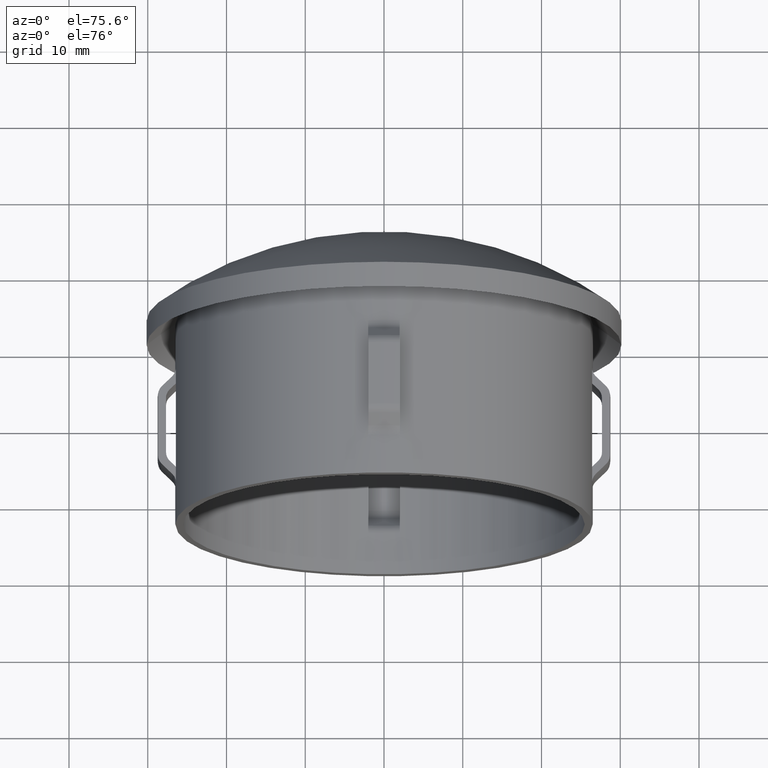
[diagram: clean part render]
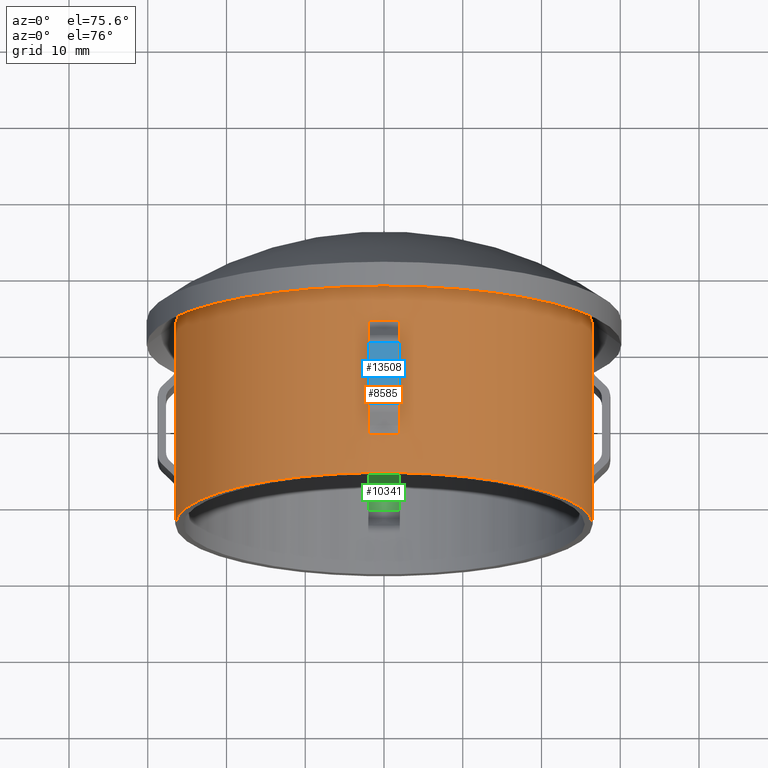
[diagram: same view with three faces highlighted in distinct colors, each labeled with its STEP entity id]
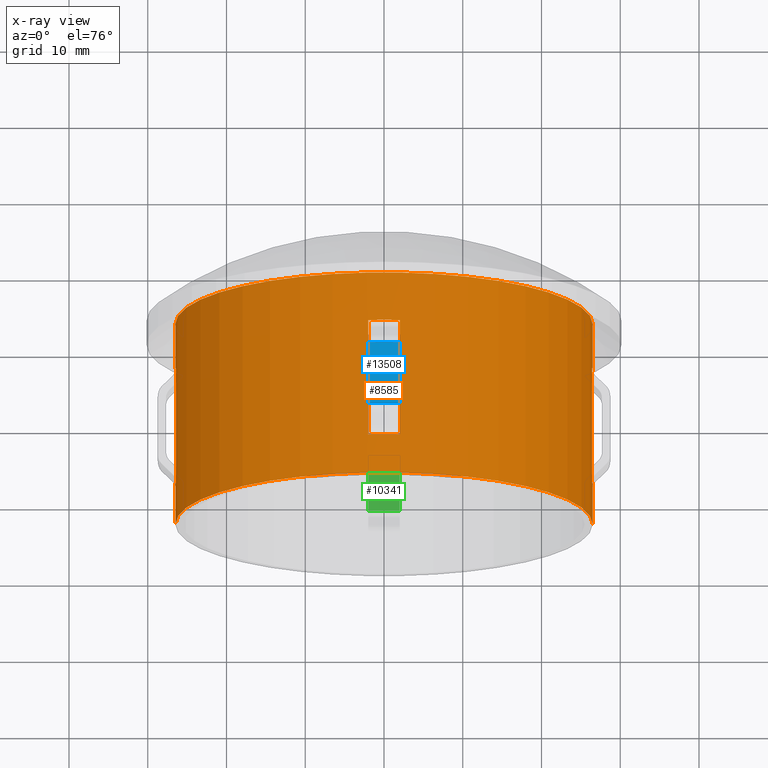
[diagram: x-ray of the same camera — body ghosted, the three highlighted faces saturated]
A machine part, auxiliary view with three faces highlighted in distinct colors.
The next image is the same camera in x-ray (body ghosted, the three faces saturated) — at least one of them is partly hidden behind the body in this view.
Their STEP definitions:

[orange] entity #8585 — the highlighted cylindrical surface (partial cylindrical patch) has radius 26.5 mm, axis along (-0, -1, -0).
#115 = DIRECTION ( 'NONE',  ( -2.699121545320764300E-015, -1.000000000000000000, -0.0000000000000000000 ) ) ;
#148 = VECTOR ( 'NONE', #4268, 1000.000000000000000 ) ;
#192 = CARTESIAN_POINT ( 'NONE',  ( 26.42442052344762600, 5.014718625761423400, 1.999999999999994000 ) ) ;
#254 = CARTESIAN_POINT ( 'NONE',  ( 2.000000000000003100, 5.014718625761423400, 26.42442052344771100 ) ) ;
#282 = VERTEX_POINT ( 'NONE', #9326 ) ;
#308 = DIRECTION ( 'NONE',  ( 1.000000000000000000, -2.683911793020713600E-015, 0.0000000000000000000 ) ) ;
#332 = DIRECTION ( 'NONE',  ( 1.000000000000000000, -2.618450529776304400E-015, 0.0000000000000000000 ) ) ;
#342 = AXIS2_PLACEMENT_3D ( 'NONE', #4856, #7169, #5984 ) ;
#387 = CARTESIAN_POINT ( 'NONE',  ( -26.42442052344781400, 5.014718625761423400, 1.999999999999994000 ) ) ;
#407 = CIRCLE ( 'NONE', #342, 26.50000000000002800 ) ;
#437 = ORIENTED_EDGE ( 'NONE', *, *, #2966, .F. ) ;
#572 = ORIENTED_EDGE ( 'NONE', *, *, #4224, .F. ) ;
#599 = CARTESIAN_POINT ( 'NONE',  ( 26.49999999999998900, 5.014718625761425100, 0.0000000000000000000 ) ) ;
#876 = DIRECTION ( 'NONE',  ( -2.449293598294745400E-017, -1.000000000000000000, -0.0000000000000000000 ) ) ;
#965 = ORIENTED_EDGE ( 'NONE', *, *, #12089, .T. ) ;
#1418 = AXIS2_PLACEMENT_3D ( 'NONE', #1609, #10601, #4994 ) ;
#1433 = EDGE_CURVE ( 'NONE', #8005, #10526, #12466, .T. ) ;
#1499 = CARTESIAN_POINT ( 'NONE',  ( -7.904453391798802700E-014, 5.014718625761496200, 0.0000000000000000000 ) ) ;
#1504 = EDGE_CURVE ( 'NONE', #3546, #5571, #5927, .T. ) ;
#1609 = CARTESIAN_POINT ( 'NONE',  ( -3.859743809808672700E-014, 20.00000000000007500, 0.0000000000000000000 ) ) ;
#1698 = CARTESIAN_POINT ( 'NONE',  ( 2.000000000000003600, 20.00000000000000000, 26.42442052344771100 ) ) ;
#1699 = LINE ( 'NONE', #5394, #9858 ) ;
#1721 = EDGE_CURVE ( 'NONE', #5835, #4632, #11581, .T. ) ;
#1729 = EDGE_LOOP ( 'NONE', ( #10391, #11924, #13946, #437, #10077, #8861, #13799, #8292 ) ) ;
#1756 = LINE ( 'NONE', #10911, #8526 ) ;
#1823 = EDGE_CURVE ( 'NONE', #11396, #14387, #12105, .T. ) ;
#1881 = DIRECTION ( 'NONE',  ( -2.449293598294745400E-017, -1.000000000000000000, -0.0000000000000000000 ) ) ;
#1913 = DIRECTION ( 'NONE',  ( -2.449293598294745400E-017, -1.000000000000000000, 0.0000000000000000000 ) ) ;
#1964 = AXIS2_PLACEMENT_3D ( 'NONE', #4670, #4819, #4771 ) ;
#2117 = CARTESIAN_POINT ( 'NONE',  ( 26.42442052344762600, 20.00000000000000000, 1.999999999999994000 ) ) ;
#2172 = ORIENTED_EDGE ( 'NONE', *, *, #1504, .F. ) ;
#2180 = VECTOR ( 'NONE', #3273, 1000.000000000000000 ) ;
#2328 = EDGE_CURVE ( 'NONE', #10922, #8890, #3808, .T. ) ;
#2465 = CARTESIAN_POINT ( 'NONE',  ( -26.42442052344781400, 20.00000000000000000, 1.999999999999994000 ) ) ;
#2728 = EDGE_CURVE ( 'NONE', #10526, #12062, #11734, .T. ) ;
#2776 = LINE ( 'NONE', #2117, #11107 ) ;
#2810 = CIRCLE ( 'NONE', #3033, 26.50000000000001800 ) ;
#2966 = EDGE_CURVE ( 'NONE', #11396, #282, #407, .T. ) ;
#2973 = LINE ( 'NONE', #7812, #8656 ) ;
#3010 = AXIS2_PLACEMENT_3D ( 'NONE', #13617, #115, #12431 ) ;
#3024 = ORIENTED_EDGE ( 'NONE', *, *, #7984, .T. ) ;
#3033 = AXIS2_PLACEMENT_3D ( 'NONE', #12350, #11178, #6735 ) ;
#3165 = DIRECTION ( 'NONE',  ( -2.449293598294745400E-017, -1.000000000000000000, -0.0000000000000000000 ) ) ;
#3211 = CIRCLE ( 'NONE', #1418, 26.50000000000002800 ) ;
#3273 = DIRECTION ( 'NONE',  ( -2.699121545320764300E-015, -1.000000000000000000, -0.0000000000000000000 ) ) ;
#3293 = CARTESIAN_POINT ( 'NONE',  ( 26.50000000000008200, 34.29999999999992600, 0.0000000000000000000 ) ) ;
#3327 = ORIENTED_EDGE ( 'NONE', *, *, #7247, .F. ) ;
#3342 = ORIENTED_EDGE ( 'NONE', *, *, #3938, .F. ) ;
#3546 = VERTEX_POINT ( 'NONE', #4484 ) ;
#3577 = CARTESIAN_POINT ( 'NONE',  ( -26.42442052344781400, 20.00000000000000000, 1.999999999999994000 ) ) ;
#3605 = CIRCLE ( 'NONE', #3010, 26.50000000000002800 ) ;
#3643 = VERTEX_POINT ( 'NONE', #2465 ) ;
#3656 = VECTOR ( 'NONE', #6207, 1000.000000000000000 ) ;
#3808 = CIRCLE ( 'NONE', #11242, 26.50000000000006800 ) ;
#3858 = VERTEX_POINT ( 'NONE', #192 ) ;
#3895 = EDGE_CURVE ( 'NONE', #3643, #10099, #14373, .T. ) ;
#3938 = EDGE_CURVE ( 'NONE', #9972, #4568, #11370, .T. ) ;
#3958 = AXIS2_PLACEMENT_3D ( 'NONE', #12236, #11265, #6624 ) ;
#4020 = VECTOR ( 'NONE', #1913, 1000.000000000000000 ) ;
#4115 = VERTEX_POINT ( 'NONE', #6467 ) ;
#4224 = EDGE_CURVE ( 'NONE', #3643, #4632, #3605, .T. ) ;
#4268 = DIRECTION ( 'NONE',  ( -2.449293598294745400E-017, -1.000000000000000000, 0.0000000000000000000 ) ) ;
#4484 = CARTESIAN_POINT ( 'NONE',  ( 26.42442052344762600, 17.96446609406721600, 1.999999999999994000 ) ) ;
#4530 = EDGE_CURVE ( 'NONE', #12712, #9972, #14198, .T. ) ;
#4568 = VERTEX_POINT ( 'NONE', #7993 ) ;
#4609 = FACE_OUTER_BOUND ( 'NONE', #6900, .T. ) ;
#4632 = VERTEX_POINT ( 'NONE', #4687 ) ;
#4670 = CARTESIAN_POINT ( 'NONE',  ( -7.904453391798802700E-014, 5.014718625761496200, 0.0000000000000000000 ) ) ;
#4672 = DIRECTION ( 'NONE',  ( -2.449293598294745400E-017, -1.000000000000000000, -0.0000000000000000000 ) ) ;
#4687 = CARTESIAN_POINT ( 'NONE',  ( -26.50000000000006400, 20.00000000000014600, 3.245314017740493300E-015 ) ) ;
#4709 = VECTOR ( 'NONE', #1881, 1000.000000000000000 ) ;
#4719 = CARTESIAN_POINT ( 'NONE',  ( -9.257986900450202300E-014, 6.938893903907228400E-014, 0.0000000000000000000 ) ) ;
#4771 = DIRECTION ( 'NONE',  ( 1.000000000000000000, -2.683911793020713600E-015, 0.0000000000000000000 ) ) ;
#4819 = DIRECTION ( 'NONE',  ( -2.699121545320764300E-015, -1.000000000000000000, -0.0000000000000000000 ) ) ;
#4856 = CARTESIAN_POINT ( 'NONE',  ( -3.859743809808672700E-014, 20.00000000000007500, 0.0000000000000000000 ) ) ;
#4907 = LINE ( 'NONE', #13332, #4020 ) ;
#4994 = DIRECTION ( 'NONE',  ( 1.000000000000000000, -2.749373056265125200E-015, 0.0000000000000000000 ) ) ;
#5041 = DIRECTION ( 'NONE',  ( -2.449293598294745400E-017, -1.000000000000000000, -0.0000000000000000000 ) ) ;
#5105 = EDGE_CURVE ( 'NONE', #12712, #3858, #7470, .T. ) ;
#5146 = DIRECTION ( 'NONE',  ( -2.699121545320764300E-015, -1.000000000000000000, -0.0000000000000000000 ) ) ;
#5394 = CARTESIAN_POINT ( 'NONE',  ( -26.50000000000008200, 34.30000000000006800, 3.245314017740496000E-015 ) ) ;
#5549 = CARTESIAN_POINT ( 'NONE',  ( -1.999999999999996200, 17.96446609406721600, 26.42442052344772600 ) ) ;
#5571 = VERTEX_POINT ( 'NONE', #12542 ) ;
#5711 = EDGE_CURVE ( 'NONE', #6712, #14158, #3211, .T. ) ;
#5835 = VERTEX_POINT ( 'NONE', #10752 ) ;
#5848 = DIRECTION ( 'NONE',  ( -2.699121545320764300E-015, -1.000000000000000000, -0.0000000000000000000 ) ) ;
#5860 = LINE ( 'NONE', #10087, #9042 ) ;
#5927 = LINE ( 'NONE', #12497, #8940 ) ;
#5984 = DIRECTION ( 'NONE',  ( 1.000000000000000000, -2.749373056265125200E-015, 0.0000000000000000000 ) ) ;
#6169 = ORIENTED_EDGE ( 'NONE', *, *, #5711, .F. ) ;
#6207 = DIRECTION ( 'NONE',  ( -2.449293598294745400E-017, -1.000000000000000000, 0.0000000000000000000 ) ) ;
#6467 = CARTESIAN_POINT ( 'NONE',  ( 26.49999999999999600, 26.22080668885404700, 0.0000000000000000000 ) ) ;
#6624 = DIRECTION ( 'NONE',  ( 1.000000000000000000, -2.683911793020713600E-015, 0.0000000000000000000 ) ) ;
#6657 = LINE ( 'NONE', #10743, #3656 ) ;
#6712 = VERTEX_POINT ( 'NONE', #6856 ) ;
#6735 = DIRECTION ( 'NONE',  ( 1.000000000000000000, -2.749373056265126400E-015, 0.0000000000000000000 ) ) ;
#6856 = CARTESIAN_POINT ( 'NONE',  ( 26.49999999999998900, 20.00000000000000000, 0.0000000000000000000 ) ) ;
#6900 = EDGE_LOOP ( 'NONE', ( #3024, #9075, #572, #10167, #9252, #7291, #11811, #965, #3342, #12409, #13173, #9465, #2172, #12596, #6169, #3327 ) ) ;
#7113 = DIRECTION ( 'NONE',  ( -2.699121545320764300E-015, -1.000000000000000000, -0.0000000000000000000 ) ) ;
#7169 = DIRECTION ( 'NONE',  ( -2.699121545320764300E-015, -1.000000000000000000, -0.0000000000000000000 ) ) ;
#7247 = EDGE_CURVE ( 'NONE', #4115, #6712, #1756, .T. ) ;
#7291 = ORIENTED_EDGE ( 'NONE', *, *, #10112, .T. ) ;
#7390 = EDGE_CURVE ( 'NONE', #5571, #3858, #5860, .T. ) ;
#7470 = CIRCLE ( 'NONE', #1964, 26.50000000000006800 ) ;
#7471 = CARTESIAN_POINT ( 'NONE',  ( 26.50000000000000400, -2.137781911928231900E-015, 0.0000000000000000000 ) ) ;
#7566 = AXIS2_PLACEMENT_3D ( 'NONE', #4719, #5848, #13691 ) ;
#7720 = CARTESIAN_POINT ( 'NONE',  ( -1.999999999999996700, 5.014718625761423400, 26.42442052344772600 ) ) ;
#7812 = CARTESIAN_POINT ( 'NONE',  ( -26.42442052344781400, 20.00000000000000000, 1.999999999999994000 ) ) ;
#7955 = DIRECTION ( 'NONE',  ( -2.449293598294745400E-017, -1.000000000000000000, -0.0000000000000000000 ) ) ;
#7984 = EDGE_CURVE ( 'NONE', #4115, #5835, #2810, .T. ) ;
#7993 = CARTESIAN_POINT ( 'NONE',  ( -26.50000000000019200, 1.409156599900727700E-013, 3.245314017740501900E-015 ) ) ;
#8005 = VERTEX_POINT ( 'NONE', #9019 ) ;
#8008 = CARTESIAN_POINT ( 'NONE',  ( 26.42442052344762600, 20.00000000000000000, 1.999999999999994000 ) ) ;
#8155 = CARTESIAN_POINT ( 'NONE',  ( 2.000000000000003600, 20.00000000000000000, 26.42442052344771100 ) ) ;
#8285 = VECTOR ( 'NONE', #4672, 1000.000000000000000 ) ;
#8292 = ORIENTED_EDGE ( 'NONE', *, *, #2728, .T. ) ;
#8349 = CARTESIAN_POINT ( 'NONE',  ( 2.000000000000003600, 20.00000000000000000, 26.42442052344771100 ) ) ;
#8433 = VERTEX_POINT ( 'NONE', #5549 ) ;
#8458 = LINE ( 'NONE', #10246, #8285 ) ;
#8526 = VECTOR ( 'NONE', #5146, 1000.000000000000000 ) ;
#8585 = ADVANCED_FACE ( 'NONE', ( #11127, #4609 ), #11818, .T. ) ;
#8656 = VECTOR ( 'NONE', #3165, 1000.000000000000000 ) ;
#8861 = ORIENTED_EDGE ( 'NONE', *, *, #12648, .T. ) ;
#8890 = VERTEX_POINT ( 'NONE', #13676 ) ;
#8936 = CARTESIAN_POINT ( 'NONE',  ( -1.999999999999996700, 7.050252531694334300, 26.42442052344772600 ) ) ;
#8940 = VECTOR ( 'NONE', #12395, 1000.000000000000000 ) ;
#8986 = DIRECTION ( 'NONE',  ( -2.699121545320764300E-015, -1.000000000000000000, -0.0000000000000000000 ) ) ;
#9019 = CARTESIAN_POINT ( 'NONE',  ( 2.000000000000003100, 7.050252531694255300, 26.42442052344771100 ) ) ;
#9042 = VECTOR ( 'NONE', #876, 1000.000000000000000 ) ;
#9075 = ORIENTED_EDGE ( 'NONE', *, *, #1721, .T. ) ;
#9131 = VECTOR ( 'NONE', #7955, 1000.000000000000000 ) ;
#9166 = EDGE_CURVE ( 'NONE', #10414, #12062, #13239, .T. ) ;
#9252 = ORIENTED_EDGE ( 'NONE', *, *, #10005, .T. ) ;
#9270 = DIRECTION ( 'NONE',  ( -2.449293598294745400E-017, -1.000000000000000000, -0.0000000000000000000 ) ) ;
#9326 = CARTESIAN_POINT ( 'NONE',  ( -1.999999999999996200, 20.00000000000008200, 26.42442052344765500 ) ) ;
#9404 = DIRECTION ( 'NONE',  ( -2.699121545320764300E-015, -1.000000000000000000, -0.0000000000000000000 ) ) ;
#9465 = ORIENTED_EDGE ( 'NONE', *, *, #7390, .F. ) ;
#9790 = VECTOR ( 'NONE', #8986, 1000.000000000000000 ) ;
#9858 = VECTOR ( 'NONE', #14441, 1000.000000000000000 ) ;
#9972 = VERTEX_POINT ( 'NONE', #7471 ) ;
#10005 = EDGE_CURVE ( 'NONE', #10099, #12611, #12343, .T. ) ;
#10077 = ORIENTED_EDGE ( 'NONE', *, *, #1823, .T. ) ;
#10087 = CARTESIAN_POINT ( 'NONE',  ( 26.42442052344762600, 20.00000000000000000, 1.999999999999994000 ) ) ;
#10099 = VERTEX_POINT ( 'NONE', #12279 ) ;
#10112 = EDGE_CURVE ( 'NONE', #12611, #10922, #2973, .T. ) ;
#10167 = ORIENTED_EDGE ( 'NONE', *, *, #3895, .T. ) ;
#10246 = CARTESIAN_POINT ( 'NONE',  ( -1.999999999999996200, 20.00000000000000000, 26.42442052344772600 ) ) ;
#10391 = ORIENTED_EDGE ( 'NONE', *, *, #9166, .F. ) ;
#10414 = VERTEX_POINT ( 'NONE', #8936 ) ;
#10481 = VECTOR ( 'NONE', #9270, 1000.000000000000000 ) ;
#10526 = VERTEX_POINT ( 'NONE', #254 ) ;
#10540 = CARTESIAN_POINT ( 'NONE',  ( 2.000000000000003600, 17.96446609406728700, 26.42442052344771100 ) ) ;
#10601 = DIRECTION ( 'NONE',  ( -2.699121545320764300E-015, -1.000000000000000000, -0.0000000000000000000 ) ) ;
#10743 = CARTESIAN_POINT ( 'NONE',  ( 2.000000000000003600, 20.00000000000000000, 26.42442052344771100 ) ) ;
#10752 = CARTESIAN_POINT ( 'NONE',  ( -26.50000000000003900, 26.22080668885419300, 3.468812058584881000E-015 ) ) ;
#10800 = EDGE_CURVE ( 'NONE', #14158, #3546, #2776, .T. ) ;
#10888 = EDGE_CURVE ( 'NONE', #282, #8433, #8458, .T. ) ;
#10911 = CARTESIAN_POINT ( 'NONE',  ( 26.50000000000008200, 34.29999999999992600, 0.0000000000000000000 ) ) ;
#10922 = VERTEX_POINT ( 'NONE', #387 ) ;
#11107 = VECTOR ( 'NONE', #14644, 1000.000000000000000 ) ;
#11127 = FACE_BOUND ( 'NONE', #1729, .T. ) ;
#11166 = CARTESIAN_POINT ( 'NONE',  ( -26.42442052344781400, 20.00000000000000000, 1.999999999999994000 ) ) ;
#11178 = DIRECTION ( 'NONE',  ( -2.699121545320764300E-015, -1.000000000000000000, -0.0000000000000000000 ) ) ;
#11242 = AXIS2_PLACEMENT_3D ( 'NONE', #1499, #7113, #308 ) ;
#11265 = DIRECTION ( 'NONE',  ( -2.699121545320764300E-015, -1.000000000000000000, -0.0000000000000000000 ) ) ;
#11370 = CIRCLE ( 'NONE', #7566, 26.50000000000009600 ) ;
#11396 = VERTEX_POINT ( 'NONE', #1698 ) ;
#11581 = LINE ( 'NONE', #12348, #2180 ) ;
#11734 = CIRCLE ( 'NONE', #3958, 26.50000000000006800 ) ;
#11777 = CARTESIAN_POINT ( 'NONE',  ( -1.999999999999996200, 20.00000000000000000, 26.42442052344772600 ) ) ;
#11789 = CARTESIAN_POINT ( 'NONE',  ( 0.0000000000000000000, 34.29999999999999700, 0.0000000000000000000 ) ) ;
#11811 = ORIENTED_EDGE ( 'NONE', *, *, #2328, .T. ) ;
#11818 = CYLINDRICAL_SURFACE ( 'NONE', #13925, 26.50000000000008200 ) ;
#11924 = ORIENTED_EDGE ( 'NONE', *, *, #12053, .F. ) ;
#11967 = CARTESIAN_POINT ( 'NONE',  ( -26.42442052344781400, 7.050252531694350300, 1.999999999999994000 ) ) ;
#12053 = EDGE_CURVE ( 'NONE', #8433, #10414, #4907, .T. ) ;
#12062 = VERTEX_POINT ( 'NONE', #7720 ) ;
#12089 = EDGE_CURVE ( 'NONE', #8890, #4568, #1699, .T. ) ;
#12105 = LINE ( 'NONE', #8155, #9131 ) ;
#12168 = VECTOR ( 'NONE', #5041, 1000.000000000000000 ) ;
#12236 = CARTESIAN_POINT ( 'NONE',  ( -7.904453391798802700E-014, 5.014718625761496200, 0.0000000000000000000 ) ) ;
#12279 = CARTESIAN_POINT ( 'NONE',  ( -26.42442052344781400, 17.96446609406731200, 1.999999999999994000 ) ) ;
#12343 = LINE ( 'NONE', #11166, #148 ) ;
#12348 = CARTESIAN_POINT ( 'NONE',  ( -26.50000000000008200, 34.30000000000006800, 3.245314017740496000E-015 ) ) ;
#12350 = CARTESIAN_POINT ( 'NONE',  ( -2.180672473492524900E-014, 26.22080668885411800, 0.0000000000000000000 ) ) ;
#12395 = DIRECTION ( 'NONE',  ( -2.449293598294745400E-017, -1.000000000000000000, 0.0000000000000000000 ) ) ;
#12409 = ORIENTED_EDGE ( 'NONE', *, *, #4530, .F. ) ;
#12431 = DIRECTION ( 'NONE',  ( 1.000000000000000000, -2.749373056265125200E-015, 0.0000000000000000000 ) ) ;
#12466 = LINE ( 'NONE', #8349, #4709 ) ;
#12497 = CARTESIAN_POINT ( 'NONE',  ( 26.42442052344762600, 20.00000000000000000, 1.999999999999994000 ) ) ;
#12542 = CARTESIAN_POINT ( 'NONE',  ( 26.42442052344762600, 7.050252531694334300, 1.999999999999994000 ) ) ;
#12596 = ORIENTED_EDGE ( 'NONE', *, *, #10800, .F. ) ;
#12611 = VERTEX_POINT ( 'NONE', #11967 ) ;
#12648 = EDGE_CURVE ( 'NONE', #14387, #8005, #6657, .T. ) ;
#12712 = VERTEX_POINT ( 'NONE', #599 ) ;
#13173 = ORIENTED_EDGE ( 'NONE', *, *, #5105, .T. ) ;
#13239 = LINE ( 'NONE', #11777, #12168 ) ;
#13332 = CARTESIAN_POINT ( 'NONE',  ( -1.999999999999996200, 20.00000000000000000, 26.42442052344772600 ) ) ;
#13617 = CARTESIAN_POINT ( 'NONE',  ( -3.859743809808672700E-014, 20.00000000000007500, 0.0000000000000000000 ) ) ;
#13676 = CARTESIAN_POINT ( 'NONE',  ( -26.50000000000015300, 5.014718625761567200, 3.245314017740498800E-015 ) ) ;
#13691 = DIRECTION ( 'NONE',  ( 1.000000000000000000, -2.699121545320764700E-015, 0.0000000000000000000 ) ) ;
#13799 = ORIENTED_EDGE ( 'NONE', *, *, #1433, .T. ) ;
#13925 = AXIS2_PLACEMENT_3D ( 'NONE', #11789, #9404, #332 ) ;
#13946 = ORIENTED_EDGE ( 'NONE', *, *, #10888, .F. ) ;
#14158 = VERTEX_POINT ( 'NONE', #8008 ) ;
#14198 = LINE ( 'NONE', #3293, #9790 ) ;
#14373 = LINE ( 'NONE', #3577, #10481 ) ;
#14387 = VERTEX_POINT ( 'NONE', #10540 ) ;
#14441 = DIRECTION ( 'NONE',  ( -2.699121545320764300E-015, -1.000000000000000000, -0.0000000000000000000 ) ) ;
#14644 = DIRECTION ( 'NONE',  ( -2.449293598294745400E-017, -1.000000000000000000, -0.0000000000000000000 ) ) ;

[blue] entity #13508 — the highlighted cylindrical surface (partial cylindrical patch) has radius 28.75 mm, axis along (-0, -1, -0).
#29 = VERTEX_POINT ( 'NONE', #12162 ) ;
#497 = ORIENTED_EDGE ( 'NONE', *, *, #12157, .F. ) ;
#628 = LINE ( 'NONE', #11365, #2043 ) ;
#1853 = DIRECTION ( 'NONE',  ( -2.699121545320764300E-015, -1.000000000000000000, -0.0000000000000000000 ) ) ;
#2043 = VECTOR ( 'NONE', #2294, 1000.000000000000000 ) ;
#2241 = VERTEX_POINT ( 'NONE', #4503 ) ;
#2294 = DIRECTION ( 'NONE',  ( -2.449293598294745400E-017, -1.000000000000000000, -0.0000000000000000000 ) ) ;
#2811 = DIRECTION ( 'NONE',  ( 1.000000000000000000, -2.654881145842759900E-015, 0.0000000000000000000 ) ) ;
#4154 = CARTESIAN_POINT ( 'NONE',  ( -6.961747218932039300E-014, 8.507359312880796100, 0.0000000000000000000 ) ) ;
#4503 = CARTESIAN_POINT ( 'NONE',  ( 2.000000000000003600, 8.507359312880790700, 28.68035041626941300 ) ) ;
#4550 = CYLINDRICAL_SURFACE ( 'NONE', #9440, 28.75000000000006000 ) ;
#4717 = FACE_OUTER_BOUND ( 'NONE', #12847, .T. ) ;
#4806 = DIRECTION ( 'NONE',  ( -2.699121545320764300E-015, -1.000000000000000000, -0.0000000000000000000 ) ) ;
#4829 = DIRECTION ( 'NONE',  ( -2.699121545320764300E-015, -1.000000000000000000, -0.0000000000000000000 ) ) ;
#4898 = ORIENTED_EDGE ( 'NONE', *, *, #10210, .F. ) ;
#6306 = LINE ( 'NONE', #8014, #14624 ) ;
#8014 = CARTESIAN_POINT ( 'NONE',  ( 2.000000000000004000, 20.00000000000000000, 28.68035041626941300 ) ) ;
#8255 = CARTESIAN_POINT ( 'NONE',  ( -4.802449982675427800E-014, 16.50735931288079800, 0.0000000000000000000 ) ) ;
#9012 = DIRECTION ( 'NONE',  ( -2.449293598294745400E-017, -1.000000000000000000, -0.0000000000000000000 ) ) ;
#9053 = EDGE_CURVE ( 'NONE', #11360, #29, #14312, .T. ) ;
#9232 = AXIS2_PLACEMENT_3D ( 'NONE', #8255, #4806, #10509 ) ;
#9302 = CARTESIAN_POINT ( 'NONE',  ( 2.000000000000004000, 16.50735931288072000, 28.68035041626941300 ) ) ;
#9440 = AXIS2_PLACEMENT_3D ( 'NONE', #11580, #4829, #2811 ) ;
#10210 = EDGE_CURVE ( 'NONE', #2241, #14415, #12516, .T. ) ;
#10509 = DIRECTION ( 'NONE',  ( 1.000000000000000000, -2.654881145842761100E-015, 0.0000000000000000000 ) ) ;
#11360 = VERTEX_POINT ( 'NONE', #9302 ) ;
#11365 = CARTESIAN_POINT ( 'NONE',  ( -1.999999999999995800, 20.00000000000000000, 28.68035041626942300 ) ) ;
#11580 = CARTESIAN_POINT ( 'NONE',  ( 0.0000000000000000000, 34.29999999999999700, 0.0000000000000000000 ) ) ;
#11748 = AXIS2_PLACEMENT_3D ( 'NONE', #4154, #1853, #12041 ) ;
#12041 = DIRECTION ( 'NONE',  ( 1.000000000000000000, -2.715219353702822100E-015, 0.0000000000000000000 ) ) ;
#12157 = EDGE_CURVE ( 'NONE', #11360, #2241, #6306, .T. ) ;
#12162 = CARTESIAN_POINT ( 'NONE',  ( -1.999999999999995800, 16.50735931288072000, 28.68035041626942300 ) ) ;
#12516 = CIRCLE ( 'NONE', #11748, 28.75000000000006800 ) ;
#12847 = EDGE_LOOP ( 'NONE', ( #13862, #14260, #4898, #497 ) ) ;
#13508 = ADVANCED_FACE ( 'NONE', ( #4717 ), #4550, .T. ) ;
#13862 = ORIENTED_EDGE ( 'NONE', *, *, #9053, .T. ) ;
#13956 = CARTESIAN_POINT ( 'NONE',  ( -1.999999999999996200, 8.507359312880790700, 28.68035041626942300 ) ) ;
#14048 = EDGE_CURVE ( 'NONE', #29, #14415, #628, .T. ) ;
#14260 = ORIENTED_EDGE ( 'NONE', *, *, #14048, .T. ) ;
#14312 = CIRCLE ( 'NONE', #9232, 28.75000000000005000 ) ;
#14415 = VERTEX_POINT ( 'NONE', #13956 ) ;
#14624 = VECTOR ( 'NONE', #9012, 1000.000000000000000 ) ;

[green] entity #10341 — the highlighted cylindrical surface (partial cylindrical patch) has radius 27.75 mm, axis along (-0, -1, -0).
#4 = DIRECTION ( 'NONE',  ( 1.000000000000000000, -2.688039980792883100E-015, 0.0000000000000000000 ) ) ;
#801 = VERTEX_POINT ( 'NONE', #8315 ) ;
#921 = CARTESIAN_POINT ( 'NONE',  ( 0.0000000000000000000, 34.29999999999999700, 0.0000000000000000000 ) ) ;
#1118 = CARTESIAN_POINT ( 'NONE',  ( -4.914251257731958100E-014, 16.09314575050769800, 0.0000000000000000000 ) ) ;
#1305 = DIRECTION ( 'NONE',  ( -2.699121545320764300E-015, -1.000000000000000000, -0.0000000000000000000 ) ) ;
#2749 = VERTEX_POINT ( 'NONE', #4314 ) ;
#2916 = DIRECTION ( 'NONE',  ( -2.699121545320764300E-015, -1.000000000000000000, -0.0000000000000000000 ) ) ;
#3143 = EDGE_CURVE ( 'NONE', #801, #8553, #13865, .T. ) ;
#3161 = EDGE_LOOP ( 'NONE', ( #7111, #8089, #7135, #14374 ) ) ;
#4314 = CARTESIAN_POINT ( 'NONE',  ( -2.000000000000064400, 8.921572875253822600, -27.67783409156148600 ) ) ;
#4940 = CYLINDRICAL_SURFACE ( 'NONE', #13461, 27.75000000000006000 ) ;
#4992 = DIRECTION ( 'NONE',  ( -2.699121545320764300E-015, -1.000000000000000000, -0.0000000000000000000 ) ) ;
#5223 = EDGE_CURVE ( 'NONE', #2749, #6017, #13655, .T. ) ;
#5421 = DIRECTION ( 'NONE',  ( -2.699121545320764300E-015, -1.000000000000000000, -0.0000000000000000000 ) ) ;
#5429 = DIRECTION ( 'NONE',  ( 1.000000000000000000, -2.750552538485743300E-015, 0.0000000000000000000 ) ) ;
#6017 = VERTEX_POINT ( 'NONE', #7110 ) ;
#6293 = LINE ( 'NONE', #11730, #13730 ) ;
#6654 = DIRECTION ( 'NONE',  ( 1.000000000000000000, -2.750552538485742100E-015, 0.0000000000000000000 ) ) ;
#6749 = LINE ( 'NONE', #7385, #10809 ) ;
#6950 = EDGE_CURVE ( 'NONE', #8553, #6017, #6749, .T. ) ;
#7110 = CARTESIAN_POINT ( 'NONE',  ( 1.999999999999935400, 8.921572875253822600, -27.67783409156148600 ) ) ;
#7111 = ORIENTED_EDGE ( 'NONE', *, *, #3143, .F. ) ;
#7135 = ORIENTED_EDGE ( 'NONE', *, *, #5223, .T. ) ;
#7385 = CARTESIAN_POINT ( 'NONE',  ( 2.000000000000004000, 34.29999999999999700, -27.67783409156148600 ) ) ;
#7479 = AXIS2_PLACEMENT_3D ( 'NONE', #11481, #1305, #4 ) ;
#7855 = DIRECTION ( 'NONE',  ( -2.699121545320764300E-015, -1.000000000000000000, -0.0000000000000000000 ) ) ;
#8089 = ORIENTED_EDGE ( 'NONE', *, *, #14250, .T. ) ;
#8315 = CARTESIAN_POINT ( 'NONE',  ( -1.999999999999996200, 16.09314575050795100, -27.67783409156400200 ) ) ;
#8553 = VERTEX_POINT ( 'NONE', #14027 ) ;
#10213 = AXIS2_PLACEMENT_3D ( 'NONE', #1118, #7855, #5429 ) ;
#10341 = ADVANCED_FACE ( 'NONE', ( #13035 ), #4940, .F. ) ;
#10809 = VECTOR ( 'NONE', #2916, 1000.000000000000000 ) ;
#11481 = CARTESIAN_POINT ( 'NONE',  ( -6.849945943875509700E-014, 8.921572875253895400, 0.0000000000000000000 ) ) ;
#11730 = CARTESIAN_POINT ( 'NONE',  ( -1.999999999999995800, 34.29999999999999700, -27.67783409156148600 ) ) ;
#13035 = FACE_OUTER_BOUND ( 'NONE', #3161, .T. ) ;
#13461 = AXIS2_PLACEMENT_3D ( 'NONE', #921, #5421, #6654 ) ;
#13655 = CIRCLE ( 'NONE', #7479, 27.75000000000007500 ) ;
#13730 = VECTOR ( 'NONE', #4992, 1000.000000000000000 ) ;
#13865 = CIRCLE ( 'NONE', #10213, 27.75000000000005000 ) ;
#14027 = CARTESIAN_POINT ( 'NONE',  ( 2.000000000000003600, 16.09314575050793600, -27.67783409156399800 ) ) ;
#14250 = EDGE_CURVE ( 'NONE', #801, #2749, #6293, .T. ) ;
#14374 = ORIENTED_EDGE ( 'NONE', *, *, #6950, .F. ) ;